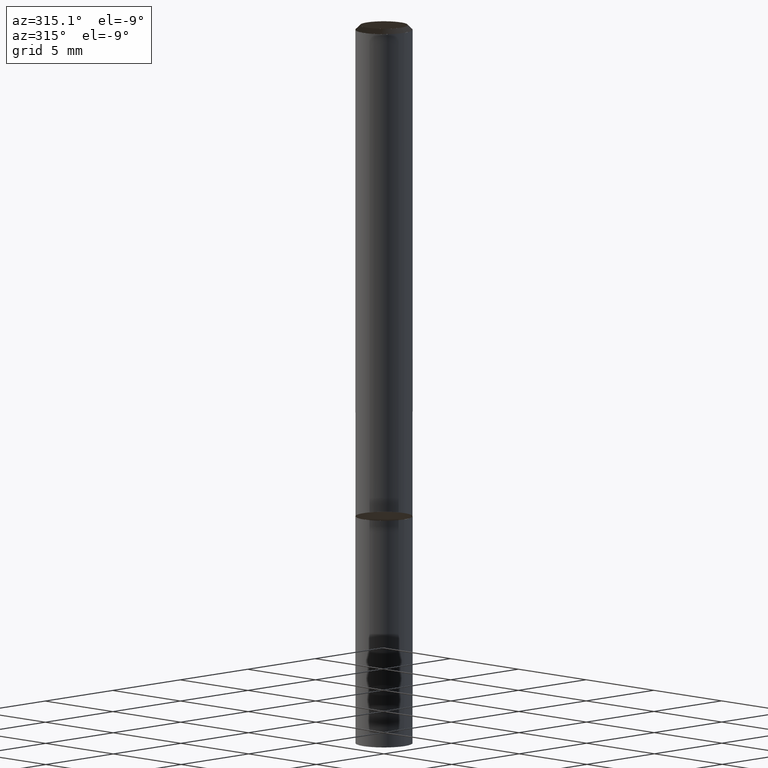
[diagram: clean part render]
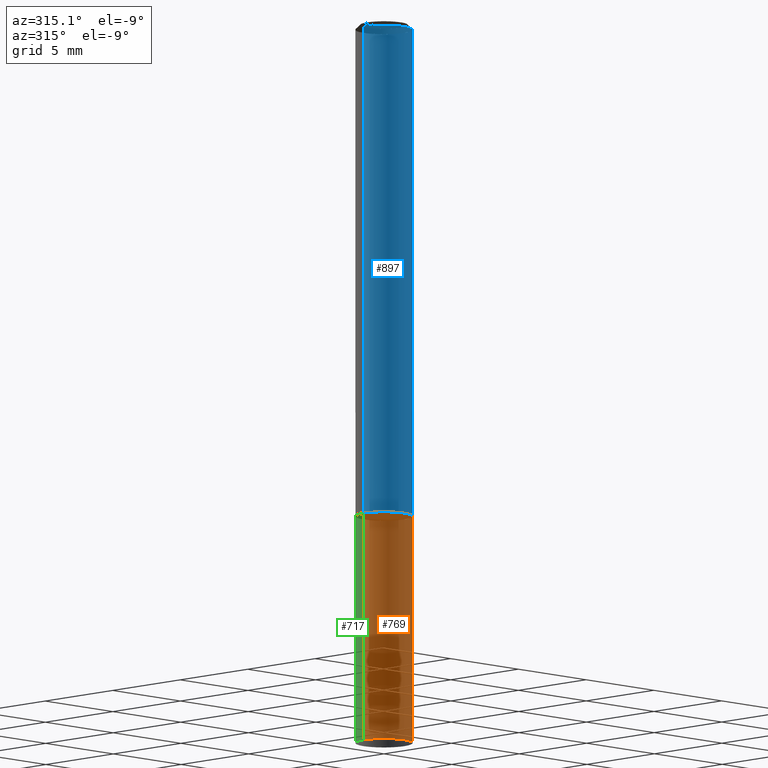
[diagram: same view with three faces highlighted in distinct colors, each labeled with its STEP entity id]
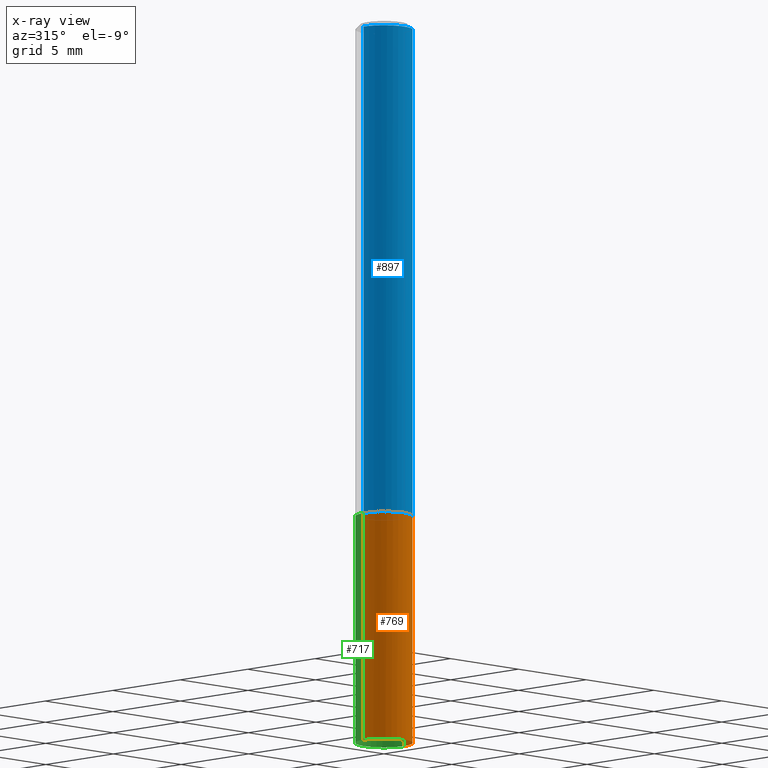
[diagram: x-ray of the same camera — body ghosted, the three highlighted faces saturated]
A machine part, auxiliary view with three faces highlighted in distinct colors.
The next image is the same camera in x-ray (body ghosted, the three faces saturated) — at least one of them is partly hidden behind the body in this view.
Their STEP definitions:

[orange] entity #769 — the highlighted face is a freeform B-spline surface patch.
#643=CARTESIAN_POINT('',(1.5,0.0,-12.0));
#647=CARTESIAN_POINT('',(-1.5,0.0,-12.0));
#648=CARTESIAN_POINT('',(1.5,0.0,0.0));
#652=CARTESIAN_POINT('',(-1.5,0.0,0.0));
#654=CARTESIAN_POINT('',(-1.5,-1.5,-12.0));
#655=CARTESIAN_POINT('',(0.0,-1.5,-12.0));
#656=CARTESIAN_POINT('',(1.5,-1.5,-12.0));
#657=CARTESIAN_POINT('',(-1.5,-1.5,0.0));
#658=CARTESIAN_POINT('',(0.0,-1.5,0.0));
#659=CARTESIAN_POINT('',(1.5,-1.5,0.0));
#750=(
BOUNDED_SURFACE()
B_SPLINE_SURFACE(1,2,(
(#647,#654,#655,#656,#643),
(#652,#657,#658,#659,#648)
), .UNSPECIFIED.,.F.,.F.,.F.)
B_SPLINE_SURFACE_WITH_KNOTS((2,2),(3,2,3),(
0.0,1.0),(
0.0,0.5,1.0), .UNSPECIFIED.)
GEOMETRIC_REPRESENTATION_ITEM()
RATIONAL_B_SPLINE_SURFACE(((1.0,0.707106781187,1.0,0.707106781187,1.0),
(1.0,0.707106781187,1.0,0.707106781187,1.0)
))
REPRESENTATION_ITEM('')
SURFACE()
);
#751=(
BOUNDED_CURVE()
B_SPLINE_CURVE(2,(#643,#656,#655,#654,#647),.UNSPECIFIED.,.F.,.F.)
B_SPLINE_CURVE_WITH_KNOTS((3,2,3),
(0.0,0.5,1.0),.UNSPECIFIED.)
CURVE()
GEOMETRIC_REPRESENTATION_ITEM()
RATIONAL_B_SPLINE_CURVE((1.0,0.707106781187,1.0,0.707106781187,1.0))
REPRESENTATION_ITEM('')
);
#752=(
BOUNDED_CURVE()
B_SPLINE_CURVE(1,(#647,#652),.UNSPECIFIED.,.F.,.F.)
B_SPLINE_CURVE_WITH_KNOTS((2,2),
(0.0,1.0),.UNSPECIFIED.)
CURVE()
GEOMETRIC_REPRESENTATION_ITEM()
RATIONAL_B_SPLINE_CURVE((1.0,1.0))
REPRESENTATION_ITEM('')
);
#753=(
BOUNDED_CURVE()
B_SPLINE_CURVE(2,(#652,#657,#658,#659,#648),.UNSPECIFIED.,.F.,.F.)
B_SPLINE_CURVE_WITH_KNOTS((3,2,3),
(0.0,0.5,1.0),.UNSPECIFIED.)
CURVE()
GEOMETRIC_REPRESENTATION_ITEM()
RATIONAL_B_SPLINE_CURVE((1.0,0.707106781187,1.0,0.707106781187,1.0))
REPRESENTATION_ITEM('')
);
#754=(
BOUNDED_CURVE()
B_SPLINE_CURVE(1,(#648,#643),.UNSPECIFIED.,.F.,.F.)
B_SPLINE_CURVE_WITH_KNOTS((2,2),
(0.0,1.0),.UNSPECIFIED.)
CURVE()
GEOMETRIC_REPRESENTATION_ITEM()
RATIONAL_B_SPLINE_CURVE((1.0,1.0))
REPRESENTATION_ITEM('')
);
#755=VERTEX_POINT('',#643);
#756=VERTEX_POINT('',#647);
#757=VERTEX_POINT('',#648);
#758=VERTEX_POINT('',#652);
#759=EDGE_CURVE('',#755,#756,#751,.T.);
#760=EDGE_CURVE('',#756,#758,#752,.T.);
#761=EDGE_CURVE('',#758,#757,#753,.T.);
#762=EDGE_CURVE('',#757,#755,#754,.T.);
#763=ORIENTED_EDGE('',*,*,#759,.T.);
#764=ORIENTED_EDGE('',*,*,#760,.T.);
#765=ORIENTED_EDGE('',*,*,#761,.T.);
#766=ORIENTED_EDGE('',*,*,#762,.T.);
#767=EDGE_LOOP('',(#763,#764,#765,#766));
#768=FACE_OUTER_BOUND('',#767,.T.);
#769=ADVANCED_FACE('',(#768),#750,.T.);

[blue] entity #897 — the highlighted face is a freeform B-spline surface patch.
#648=CARTESIAN_POINT('',(1.5,0.0,0.0));
#652=CARTESIAN_POINT('',(-1.5,0.0,0.0));
#657=CARTESIAN_POINT('',(-1.5,-1.5,0.0));
#658=CARTESIAN_POINT('',(0.0,-1.5,0.0));
#659=CARTESIAN_POINT('',(1.5,-1.5,0.0));
#660=CARTESIAN_POINT('',(1.5,0.0,25.75));
#664=CARTESIAN_POINT('',(-1.5,0.0,25.75));
#671=CARTESIAN_POINT('',(-1.5,-1.5,25.75));
#672=CARTESIAN_POINT('',(0.0,-1.5,25.75));
#673=CARTESIAN_POINT('',(1.5,-1.5,25.75));
#878=(
BOUNDED_SURFACE()
B_SPLINE_SURFACE(1,2,(
(#652,#657,#658,#659,#648),
(#664,#671,#672,#673,#660)
), .UNSPECIFIED.,.F.,.F.,.F.)
B_SPLINE_SURFACE_WITH_KNOTS((2,2),(3,2,3),(
0.0,1.0),(
0.0,0.5,1.0), .UNSPECIFIED.)
GEOMETRIC_REPRESENTATION_ITEM()
RATIONAL_B_SPLINE_SURFACE(((1.0,0.707106781187,1.0,0.707106781187,1.0),
(1.0,0.707106781187,1.0,0.707106781187,1.0)
))
REPRESENTATION_ITEM('')
SURFACE()
);
#879=(
BOUNDED_CURVE()
B_SPLINE_CURVE(2,(#648,#659,#658,#657,#652),.UNSPECIFIED.,.F.,.F.)
B_SPLINE_CURVE_WITH_KNOTS((3,2,3),
(0.0,0.5,1.0),.UNSPECIFIED.)
CURVE()
GEOMETRIC_REPRESENTATION_ITEM()
RATIONAL_B_SPLINE_CURVE((1.0,0.707106781187,1.0,0.707106781187,1.0))
REPRESENTATION_ITEM('')
);
#880=(
BOUNDED_CURVE()
B_SPLINE_CURVE(1,(#652,#664),.UNSPECIFIED.,.F.,.F.)
B_SPLINE_CURVE_WITH_KNOTS((2,2),
(0.0,1.0),.UNSPECIFIED.)
CURVE()
GEOMETRIC_REPRESENTATION_ITEM()
RATIONAL_B_SPLINE_CURVE((1.0,1.0))
REPRESENTATION_ITEM('')
);
#881=(
BOUNDED_CURVE()
B_SPLINE_CURVE(2,(#664,#671,#672,#673,#660),.UNSPECIFIED.,.F.,.F.)
B_SPLINE_CURVE_WITH_KNOTS((3,2,3),
(0.0,0.5,1.0),.UNSPECIFIED.)
CURVE()
GEOMETRIC_REPRESENTATION_ITEM()
RATIONAL_B_SPLINE_CURVE((1.0,0.707106781187,1.0,0.707106781187,1.0))
REPRESENTATION_ITEM('')
);
#882=(
BOUNDED_CURVE()
B_SPLINE_CURVE(1,(#660,#648),.UNSPECIFIED.,.F.,.F.)
B_SPLINE_CURVE_WITH_KNOTS((2,2),
(0.0,1.0),.UNSPECIFIED.)
CURVE()
GEOMETRIC_REPRESENTATION_ITEM()
RATIONAL_B_SPLINE_CURVE((1.0,1.0))
REPRESENTATION_ITEM('')
);
#883=VERTEX_POINT('',#648);
#884=VERTEX_POINT('',#652);
#885=VERTEX_POINT('',#660);
#886=VERTEX_POINT('',#664);
#887=EDGE_CURVE('',#883,#884,#879,.T.);
#888=EDGE_CURVE('',#884,#886,#880,.T.);
#889=EDGE_CURVE('',#886,#885,#881,.T.);
#890=EDGE_CURVE('',#885,#883,#882,.T.);
#891=ORIENTED_EDGE('',*,*,#887,.T.);
#892=ORIENTED_EDGE('',*,*,#888,.T.);
#893=ORIENTED_EDGE('',*,*,#889,.T.);
#894=ORIENTED_EDGE('',*,*,#890,.T.);
#895=EDGE_LOOP('',(#891,#892,#893,#894));
#896=FACE_OUTER_BOUND('',#895,.T.);
#897=ADVANCED_FACE('',(#896),#878,.T.);

[green] entity #717 — the highlighted face is a freeform B-spline surface patch.
#643=CARTESIAN_POINT('',(1.5,0.0,-12.0));
#644=CARTESIAN_POINT('',(1.5,1.5,-12.0));
#645=CARTESIAN_POINT('',(0.0,1.5,-12.0));
#646=CARTESIAN_POINT('',(-1.5,1.5,-12.0));
#647=CARTESIAN_POINT('',(-1.5,0.0,-12.0));
#648=CARTESIAN_POINT('',(1.5,0.0,0.0));
#649=CARTESIAN_POINT('',(1.5,1.5,0.0));
#650=CARTESIAN_POINT('',(0.0,1.5,0.0));
#651=CARTESIAN_POINT('',(-1.5,1.5,0.0));
#652=CARTESIAN_POINT('',(-1.5,0.0,0.0));
#698=(
BOUNDED_SURFACE()
B_SPLINE_SURFACE(1,2,(
(#643,#644,#645,#646,#647),
(#648,#649,#650,#651,#652)
), .UNSPECIFIED.,.F.,.F.,.F.)
B_SPLINE_SURFACE_WITH_KNOTS((2,2),(3,2,3),(
0.0,1.0),(
0.0,0.5,1.0), .UNSPECIFIED.)
GEOMETRIC_REPRESENTATION_ITEM()
RATIONAL_B_SPLINE_SURFACE(((1.0,0.707106781187,1.0,0.707106781187,1.0),
(1.0,0.707106781187,1.0,0.707106781187,1.0)
))
REPRESENTATION_ITEM('')
SURFACE()
);
#699=(
BOUNDED_CURVE()
B_SPLINE_CURVE(2,(#647,#646,#645,#644,#643),.UNSPECIFIED.,.F.,.F.)
B_SPLINE_CURVE_WITH_KNOTS((3,2,3),
(0.0,0.5,1.0),.UNSPECIFIED.)
CURVE()
GEOMETRIC_REPRESENTATION_ITEM()
RATIONAL_B_SPLINE_CURVE((1.0,0.707106781187,1.0,0.707106781187,1.0))
REPRESENTATION_ITEM('')
);
#700=(
BOUNDED_CURVE()
B_SPLINE_CURVE(1,(#643,#648),.UNSPECIFIED.,.F.,.F.)
B_SPLINE_CURVE_WITH_KNOTS((2,2),
(0.0,1.0),.UNSPECIFIED.)
CURVE()
GEOMETRIC_REPRESENTATION_ITEM()
RATIONAL_B_SPLINE_CURVE((1.0,1.0))
REPRESENTATION_ITEM('')
);
#701=(
BOUNDED_CURVE()
B_SPLINE_CURVE(2,(#648,#649,#650,#651,#652),.UNSPECIFIED.,.F.,.F.)
B_SPLINE_CURVE_WITH_KNOTS((3,2,3),
(0.0,0.5,1.0),.UNSPECIFIED.)
CURVE()
GEOMETRIC_REPRESENTATION_ITEM()
RATIONAL_B_SPLINE_CURVE((1.0,0.707106781187,1.0,0.707106781187,1.0))
REPRESENTATION_ITEM('')
);
#702=(
BOUNDED_CURVE()
B_SPLINE_CURVE(1,(#652,#647),.UNSPECIFIED.,.F.,.F.)
B_SPLINE_CURVE_WITH_KNOTS((2,2),
(0.0,1.0),.UNSPECIFIED.)
CURVE()
GEOMETRIC_REPRESENTATION_ITEM()
RATIONAL_B_SPLINE_CURVE((1.0,1.0))
REPRESENTATION_ITEM('')
);
#703=VERTEX_POINT('',#643);
#704=VERTEX_POINT('',#647);
#705=VERTEX_POINT('',#648);
#706=VERTEX_POINT('',#652);
#707=EDGE_CURVE('',#704,#703,#699,.T.);
#708=EDGE_CURVE('',#703,#705,#700,.T.);
#709=EDGE_CURVE('',#705,#706,#701,.T.);
#710=EDGE_CURVE('',#706,#704,#702,.T.);
#711=ORIENTED_EDGE('',*,*,#707,.T.);
#712=ORIENTED_EDGE('',*,*,#708,.T.);
#713=ORIENTED_EDGE('',*,*,#709,.T.);
#714=ORIENTED_EDGE('',*,*,#710,.T.);
#715=EDGE_LOOP('',(#711,#712,#713,#714));
#716=FACE_OUTER_BOUND('',#715,.T.);
#717=ADVANCED_FACE('',(#716),#698,.T.);